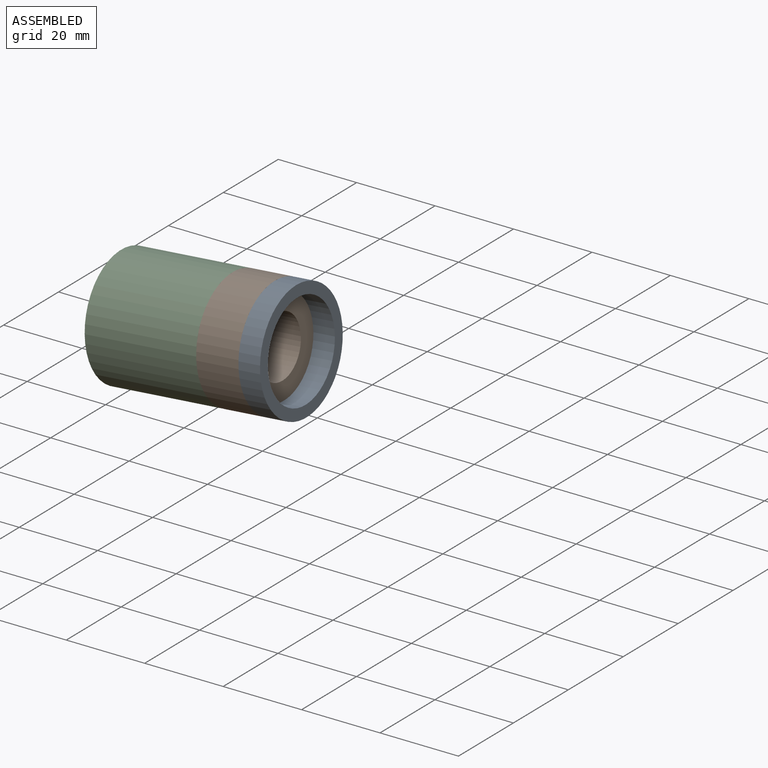
[diagram: assembled view]
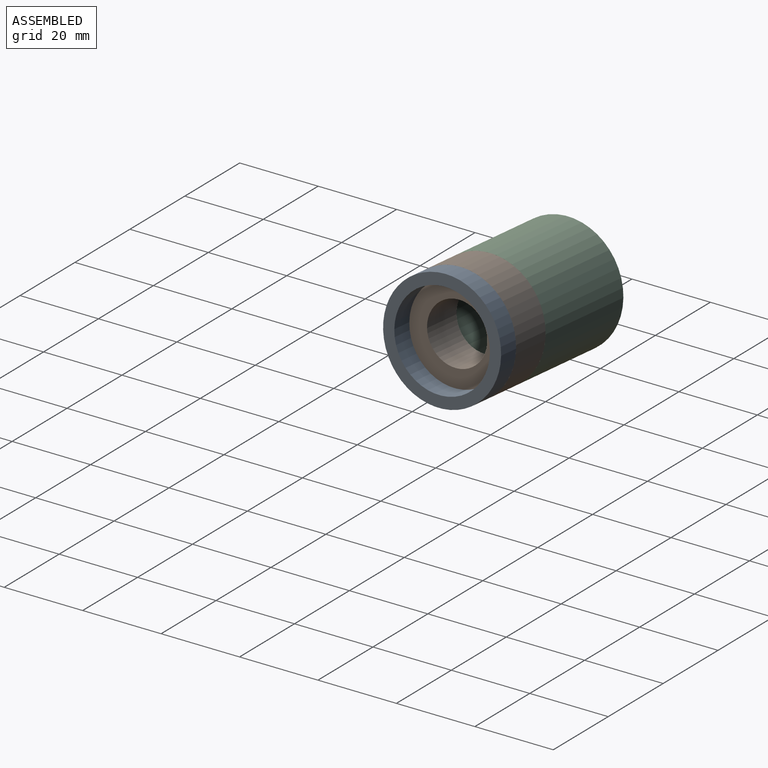
[diagram: assembled view, second angle]
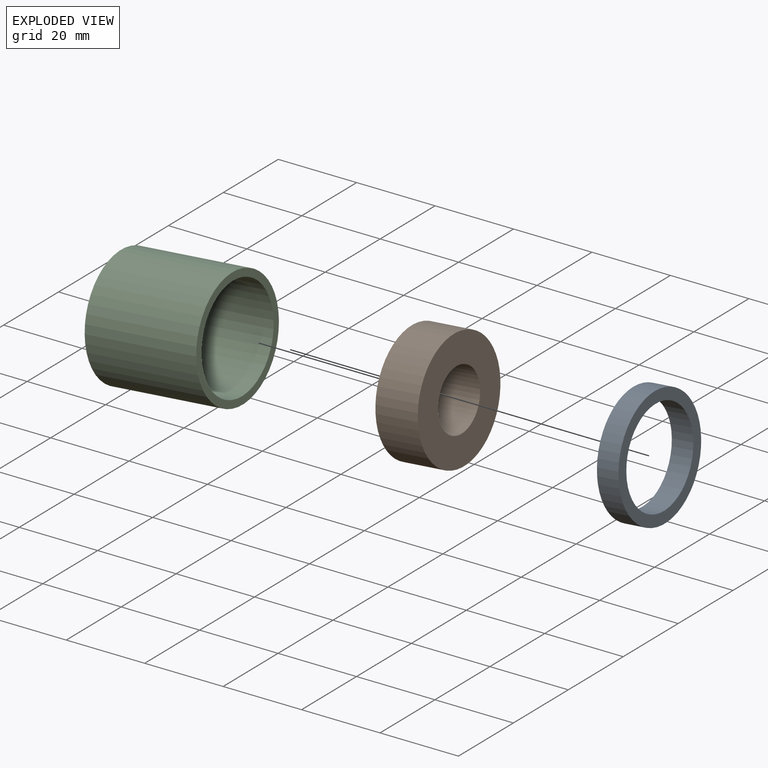
[diagram: exploded view]
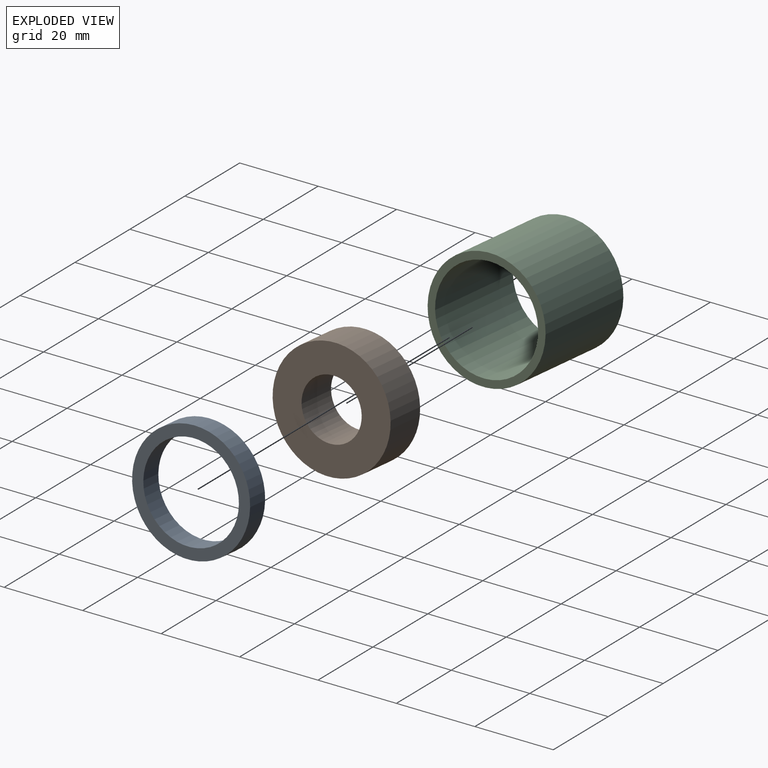
[diagram: exploded view, second angle]
ASSEMBLY  parts=3 mates=2
PART A: 4 faces, bbox 30x30x5.5 mm
  f0: cylinder r=12.15mm len=24.3mm, axis (0,0,-1), area 419.9mm2, adj f2,f3
  f1: cylinder r=15mm len=30mm, axis (0,0,-1), area 518.4mm2, adj f2,f3
  f2: plane 30x30mm, normal (0,0,1), area 243.1mm2, adj f0,f1
  f3: plane 30x30mm, normal (0,0,-1), area 243.1mm2, adj f0,f1
PART B: 4 faces, bbox 10.8x30x30 mm
  f0: cylinder r=7.65mm len=15.3mm, axis (-1,0,0), area 519.6mm2, adj f2,f3
  f1: cylinder r=15mm len=30mm, axis (-1,0,0), area 1018.8mm2, adj f2,f3
  f2: plane 30x30mm, normal (1,0,0), area 523mm2, adj f0,f1
  f3: plane 30x30mm, normal (-1,0,0), area 523mm2, adj f0,f1
PART C: 4 faces, bbox 28.5x30x30 mm
  f0: cylinder r=13.1mm len=28.5mm, axis (1,0,0), area 2345.8mm2, adj f2,f3
  f1: cylinder r=15mm len=30mm, axis (1,0,0), area 2686.1mm2, adj f2,f3
  f2: plane 30x30mm, normal (1,0,0), area 167.7mm2, adj f0,f1
  f3: plane 30x30mm, normal (-1,0,0), area 167.7mm2, adj f0,f1
PLACE A rot(axis=(0.69,-0.36,-0.63),143.6deg) t=(23.39,-75.26,30.25)mm
PLACE B rot(axis=(0.99,-0.13,0.04),35.5deg) t=(10.23,-22.62,-8.82)mm
PLACE C rot(axis=(0.99,-0.13,0.04),35.5deg) t=(7.15,16.88,26.68)mm
MATE cylindrical B.f0 <-> C.f0  axis (-1,0,-0.08) through (6.83,-10.24,31.09)mm
MATE cylindrical A.f0 <-> B.f0  axis (1,0,0.08) through (17.6,-10.22,32.01)mm
